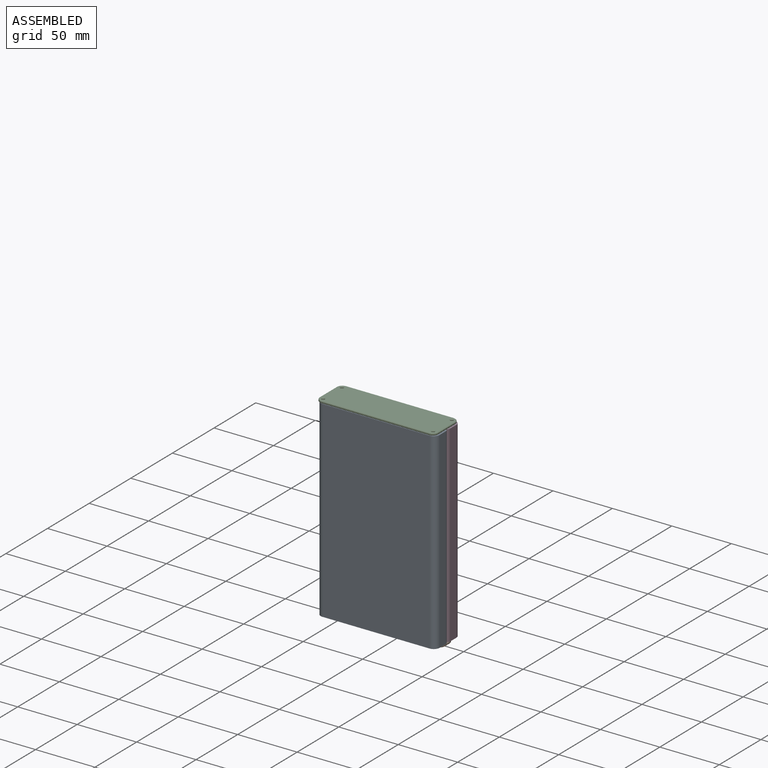
[diagram: assembled view]
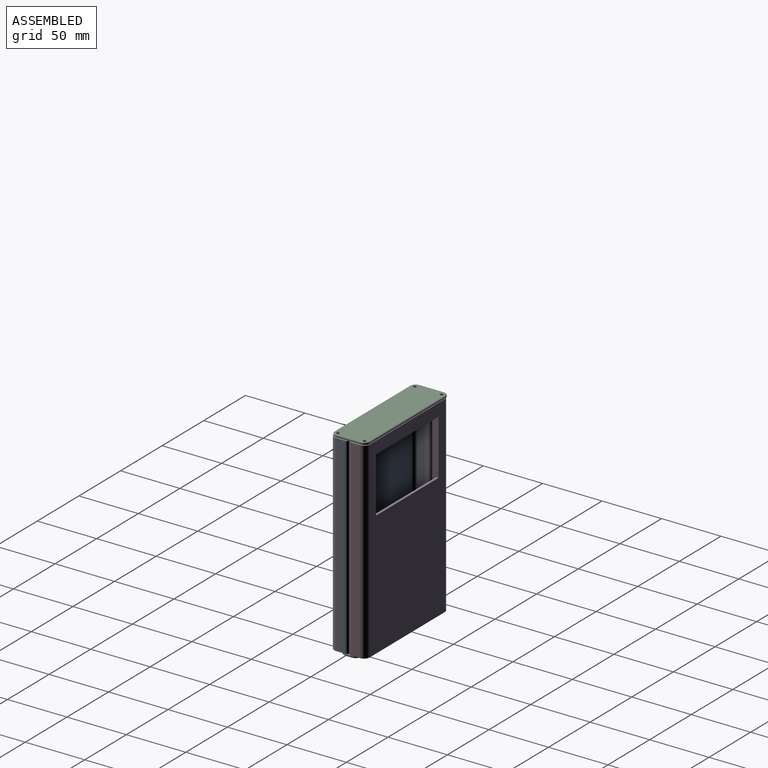
[diagram: assembled view, second angle]
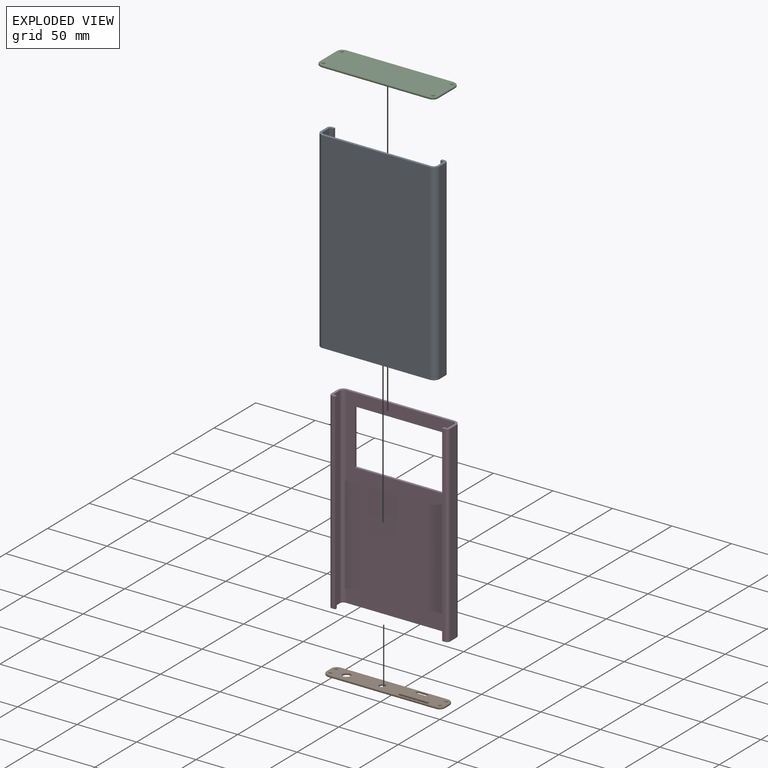
[diagram: exploded view]
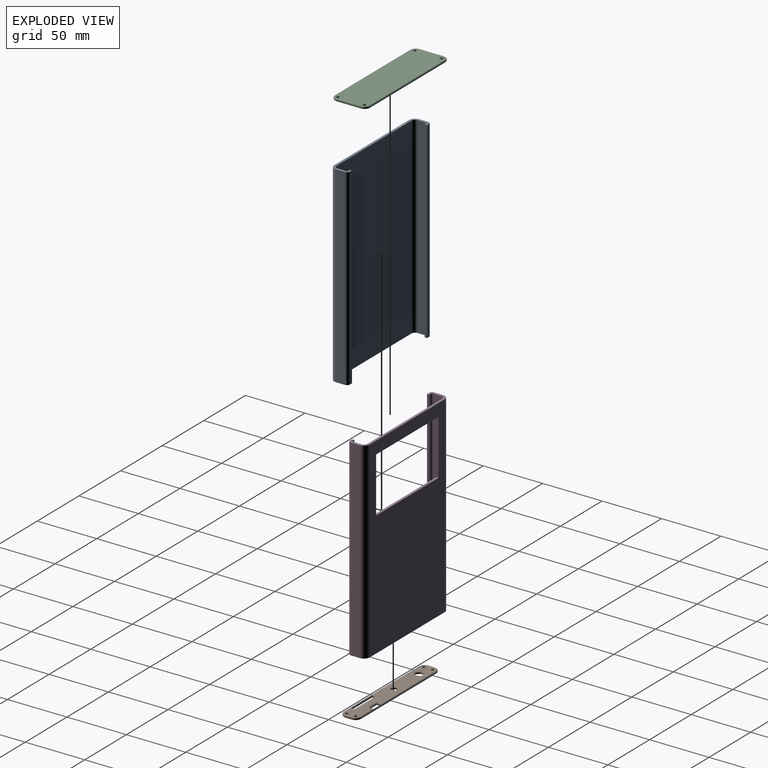
[diagram: exploded view, second angle]
ASSEMBLY  parts=4 mates=4
PART A: 22 faces, bbox 100x15x161.8 mm
  f0: plane 161.8x2mm, normal (-1,0,0), area 323.6mm2, adj f1,f19,f20,f21
  f1: plane 161.8x2.5mm, normal (0,-1,0), area 404.5mm2, adj f0,f2,f20,f21
  f2: cylinder r=0.5mm len=161.8mm, axis (0,0,-1), area 127.1mm2, adj f1,f3,f20,f21
  f3: plane 161.8x7.5mm, normal (-1,0,0), area 1213.5mm2, adj f2,f4,f20,f21
  f4: cylinder r=3mm len=161.8mm, axis (0,0,-1), area 762.5mm2, adj f3,f5,f20,f21
  f5: plane 161.8x90mm, normal (0,1,0), area 14562mm2, adj f4,f6,f20,f21
  f6: cylinder r=3mm len=161.8mm, axis (0,0,-1), area 762.5mm2, adj f5,f7,f20,f21
  f7: plane 161.8x7.5mm, normal (1,0,0), area 1213.5mm2, adj f6,f8,f20,f21
  f8: cylinder r=0.5mm len=161.8mm, axis (0,0,-1), area 127.1mm2, adj f7,f9,f20,f21
  f9: plane 161.8x2.5mm, normal (0,-1,0), area 404.5mm2, adj f8,f10,f20,f21
  f10: plane 161.8x2mm, normal (1,0,0), area 323.6mm2, adj f9,f11,f20,f21
  f11: plane 161.8x2.5mm, normal (0,1,0), area 404.5mm2, adj f10,f12,f20,f21
  f12: cylinder r=2.5mm len=161.8mm, axis (0,0,-1), area 635.4mm2, adj f11,f13,f20,f21
  f13: plane 161.8x7.5mm, normal (-1,0,0), area 1213.5mm2, adj f12,f14,f20,f21
  f14: cylinder r=5mm len=161.8mm, axis (0,0,-1), area 1270.8mm2, adj f13,f15,f20,f21
  f15: plane 161.8x90mm, normal (0,-1,0), area 14562mm2, adj f14,f16,f20,f21
  f16: cylinder r=5mm len=161.8mm, axis (0,0,-1), area 1270.8mm2, adj f15,f17,f20,f21
  f17: plane 161.8x7.5mm, normal (1,0,0), area 1213.5mm2, adj f16,f18,f20,f21
  f18: cylinder r=2.5mm len=161.8mm, axis (0,0,-1), area 635.4mm2, adj f17,f19,f20,f21
  f19: plane 161.8x2.5mm, normal (0,1,0), area 404.5mm2, adj f0,f18,f20,f21
  f20: plane 100x15mm, normal (0,0,1), area 254.6mm2, adj f0,f1,f2,f3,f4,f5,f6,f7
  f21: plane 100x15mm, normal (0,0,-1), area 254.6mm2, adj f0,f1,f2,f3,f4,f5,f6,f7
PART B: 68 faces, bbox 100x2x15 mm
  f0: plane 5x1mm, normal (1,0,0), area 5mm2, adj f20,f23,f25,f46
  f1: plane 90x1mm, normal (0,0,1), area 90mm2, adj f20,f21,f32,f54
  f2: plane 5x1mm, normal (-1,0,0), area 5mm2, adj f21,f22,f35,f57
  f3: plane 25x1mm, normal (0,0,-1), area 25mm2, adj f4,f9,f43,f65
  f4: plane 2.5x1mm, normal (-1,0,0), area 2.5mm2, adj f3,f5,f41,f63
  f5: plane 25x1mm, normal (0,0,1), area 25mm2, adj f4,f9,f42,f64
  f6: plane 9x1mm, normal (0,0,-1), area 9mm2, adj f7,f10,f28,f51
  f7: plane 3.42x1mm, normal (-1,0,0), area 3.4mm2, adj f6,f8,f29,f50
  f8: plane 9x1mm, normal (0,0,1), area 9mm2, adj f7,f10,f24,f47
  f9: plane 2.5x1mm, normal (1,0,0), area 2.5mm2, adj f3,f5,f44,f66
  f10: plane 3.42x1mm, normal (1,0,0), area 3.4mm2, adj f6,f8,f27,f52
  f11: cylinder r=3.17mm len=6.35mm, axis (0,1,0), area 19.9mm2, adj f45,f67
  f12: cylinder r=2.5mm len=5mm, axis (0,1,0), area 15.7mm2, adj f40,f62
  f13: cylinder r=1.25mm len=2.5mm, axis (0,1,0), area 7.9mm2, adj f39,f61
  f14: cylinder r=1.25mm len=2.5mm, axis (0,1,0), area 7.9mm2, adj f38,f60
  f15: cylinder r=1.25mm len=2.5mm, axis (0,1,0), area 7.9mm2, adj f37,f59
  f16: cylinder r=1.25mm len=2.5mm, axis (0,1,0), area 7.9mm2, adj f36,f58
  f17: plane 90x1mm, normal (0,0,-1), area 90mm2, adj f22,f23,f31,f53
  f18: plane 99x14mm, normal (0,-1,0), area 1126.3mm2, adj f46,f47,f48,f49,f50,f52,f53,f54
  f19: plane 99x14mm, normal (0,1,0), area 1126.3mm2, adj f24,f25,f26,f27,f29,f30,f31,f32
  f20: cylinder r=5mm len=5mm, axis (0,1,0), area 7.9mm2, adj f0,f1,f30,f49
  f21: cylinder r=5mm len=5mm, axis (0,-1,0), area 7.9mm2, adj f1,f2,f34,f56
  f22: cylinder r=5mm len=5mm, axis (0,1,0), area 7.9mm2, adj f2,f17,f33,f55
  f23: cylinder r=5mm len=5mm, axis (0,-1,0), area 7.9mm2, adj f0,f17,f26,f48
  f24: plane 10x0.5mm, normal (0,0.71,0.71), area 6.7mm2, adj f8,f19,f27,f29
  f25: plane 5x0.5mm, normal (0.71,0.71,0), area 3.5mm2, adj f0,f19,f26,f30
  f26: cone r=4.5mm half-angle=45deg, axis (0,-1,0), area 5.3mm2, adj f19,f23,f25,f31
  f27: plane 4.32x0.5mm, normal (0.71,0.71,0), area 2.8mm2, adj f10,f19,f24,f28,f32
  f28: plane 9.79x0.4mm, normal (0,0.71,-0.71), area 5.2mm2, adj f6,f27,f29,f32
  f29: plane 4.32x0.5mm, normal (-0.71,0.71,0), area 2.8mm2, adj f7,f19,f24,f28,f32
  f30: cone r=4.5mm half-angle=45deg, axis (0,-1,0), area 5.3mm2, adj f19,f20,f25,f32
  f31: plane 90x0.5mm, normal (0,0.71,-0.71), area 63.6mm2, adj f17,f19,f26,f33
  f32: plane 90x0.5mm, normal (0,0.71,0.71), area 62.2mm2, adj f1,f19,f27,f28,f29,f30,f34
  f33: cone r=4.5mm half-angle=45deg, axis (0,-1,0), area 5.3mm2, adj f19,f22,f31,f35
  f34: cone r=4.5mm half-angle=45deg, axis (0,-1,0), area 5.3mm2, adj f19,f21,f32,f35
  f35: plane 5x0.5mm, normal (-0.71,0.71,0), area 3.5mm2, adj f2,f19,f33,f34
  f36: cone r=1.75mm half-angle=45deg, axis (0,1,0), area 6.7mm2, adj f16,f19
  f37: cone r=1.75mm half-angle=45deg, axis (0,1,0), area 6.7mm2, adj f15,f19
  f38: cone r=1.75mm half-angle=45deg, axis (0,1,0), area 6.7mm2, adj f14,f19
  f39: cone r=1.75mm half-angle=45deg, axis (0,1,0), area 6.7mm2, adj f13,f19
  f40: cone r=3mm half-angle=45deg, axis (0,1,0), area 12.2mm2, adj f12,f19
  f41: plane 3.5x0.5mm, normal (-0.71,0.71,0), area 2.1mm2, adj f4,f19,f42,f43
  f42: plane 26x0.5mm, normal (0,0.71,0.71), area 18mm2, adj f5,f19,f41,f44
  f43: plane 26x0.5mm, normal (0,0.71,-0.71), area 18mm2, adj f3,f19,f41,f44
  f44: plane 3.5x0.5mm, normal (0.71,0.71,0), area 2.1mm2, adj f9,f19,f42,f43
  f45: cone r=3.67mm half-angle=45deg, axis (0,1,0), area 15.2mm2, adj f11,f19
  f46: plane 5x0.5mm, normal (0.71,-0.71,0), area 3.5mm2, adj f0,f18,f48,f49
  f47: plane 10x0.5mm, normal (0,-0.71,0.71), area 6.7mm2, adj f8,f18,f50,f52
  f48: cone r=4.5mm half-angle=45deg, axis (0,1,0), area 5.3mm2, adj f18,f23,f46,f53
  f49: cone r=4.5mm half-angle=45deg, axis (0,1,0), area 5.3mm2, adj f18,f20,f46,f54
  f50: plane 4.32x0.5mm, normal (-0.71,-0.71,0), area 2.8mm2, adj f7,f18,f47,f51,f54
  f51: plane 9.79x0.4mm, normal (0,-0.71,-0.71), area 5.2mm2, adj f6,f50,f52,f54
  f52: plane 4.32x0.5mm, normal (0.71,-0.71,0), area 2.8mm2, adj f10,f18,f47,f51,f54
  f53: plane 90x0.5mm, normal (0,-0.71,-0.71), area 63.6mm2, adj f17,f18,f48,f55
  f54: plane 90x0.5mm, normal (0,-0.71,0.71), area 62.2mm2, adj f1,f18,f49,f50,f51,f52,f56
  f55: cone r=4.5mm half-angle=45deg, axis (0,1,0), area 5.3mm2, adj f18,f22,f53,f57
  f56: cone r=4.5mm half-angle=45deg, axis (0,1,0), area 5.3mm2, adj f18,f21,f54,f57
  f57: plane 5x0.5mm, normal (-0.71,-0.71,0), area 3.5mm2, adj f2,f18,f55,f56
  f58: cone r=1.25mm half-angle=45deg, axis (0,-1,0), area 6.7mm2, adj f16,f18
  f59: cone r=1.25mm half-angle=45deg, axis (0,-1,0), area 6.7mm2, adj f15,f18
  f60: cone r=1.25mm half-angle=45deg, axis (0,-1,0), area 6.7mm2, adj f14,f18
  f61: cone r=1.25mm half-angle=45deg, axis (0,-1,0), area 6.7mm2, adj f13,f18
  f62: cone r=2.5mm half-angle=45deg, axis (0,-1,0), area 12.2mm2, adj f12,f18
  f63: plane 3.5x0.5mm, normal (-0.71,-0.71,0), area 2.1mm2, adj f4,f18,f64,f65
  f64: plane 26x0.5mm, normal (0,-0.71,0.71), area 18mm2, adj f5,f18,f63,f66
  f65: plane 26x0.5mm, normal (0,-0.71,-0.71), area 18mm2, adj f3,f18,f63,f66
  f66: plane 3.5x0.5mm, normal (0.71,-0.71,0), area 2.1mm2, adj f9,f18,f64,f65
  f67: cone r=3.17mm half-angle=45deg, axis (0,-1,0), area 15.2mm2, adj f11,f18
PART C: 38 faces, bbox 100x30x2 mm
  f0: plane 20x1mm, normal (1,0,0), area 20mm2, adj f10,f13,f14,f26
  f1: plane 90x1mm, normal (0,1,0), area 90mm2, adj f10,f11,f18,f30
  f2: plane 20x1mm, normal (-1,0,0), area 20mm2, adj f11,f12,f21,f33
  f3: cylinder r=1.25mm len=2.5mm, axis (0,0,-1), area 7.9mm2, adj f25,f37
  f4: cylinder r=1.25mm len=2.5mm, axis (0,0,-1), area 7.9mm2, adj f24,f36
  f5: cylinder r=1.25mm len=2.5mm, axis (0,0,-1), area 7.9mm2, adj f23,f35
  f6: cylinder r=1.25mm len=2.5mm, axis (0,0,-1), area 7.9mm2, adj f22,f34
  f7: plane 90x1mm, normal (0,-1,0), area 90mm2, adj f12,f13,f17,f29
  f8: plane 99x29mm, normal (0,0,1), area 2815.1mm2, adj f26,f27,f28,f29,f30,f31,f32,f33
  f9: plane 99x29mm, normal (0,0,-1), area 2815.1mm2, adj f14,f15,f16,f17,f18,f19,f20,f21
  f10: cylinder r=5mm len=5mm, axis (0,0,-1), area 7.9mm2, adj f0,f1,f16,f28
  f11: cylinder r=5mm len=5mm, axis (0,0,1), area 7.9mm2, adj f1,f2,f20,f32
  f12: cylinder r=5mm len=5mm, axis (0,0,-1), area 7.9mm2, adj f2,f7,f19,f31
  f13: cylinder r=5mm len=5mm, axis (0,0,1), area 7.9mm2, adj f0,f7,f15,f27
  f14: plane 20x0.5mm, normal (0.71,0,-0.71), area 14.1mm2, adj f0,f9,f15,f16
  f15: cone r=4.5mm half-angle=45deg, axis (0,0,1), area 5.3mm2, adj f9,f13,f14,f17
  f16: cone r=4.5mm half-angle=45deg, axis (0,0,1), area 5.3mm2, adj f9,f10,f14,f18
  f17: plane 90x0.5mm, normal (0,-0.71,-0.71), area 63.6mm2, adj f7,f9,f15,f19
  f18: plane 90x0.5mm, normal (0,0.71,-0.71), area 63.6mm2, adj f1,f9,f16,f20
  f19: cone r=4.5mm half-angle=45deg, axis (0,0,1), area 5.3mm2, adj f9,f12,f17,f21
  f20: cone r=4.5mm half-angle=45deg, axis (0,0,1), area 5.3mm2, adj f9,f11,f18,f21
  f21: plane 20x0.5mm, normal (-0.71,0,-0.71), area 14.1mm2, adj f2,f9,f19,f20
  f22: cone r=1.75mm half-angle=45deg, axis (0,0,-1), area 6.7mm2, adj f6,f9
  f23: cone r=1.75mm half-angle=45deg, axis (0,0,-1), area 6.7mm2, adj f5,f9
  f24: cone r=1.75mm half-angle=45deg, axis (0,0,-1), area 6.7mm2, adj f4,f9
  f25: cone r=1.75mm half-angle=45deg, axis (0,0,-1), area 6.7mm2, adj f3,f9
  f26: plane 20x0.5mm, normal (0.71,0,0.71), area 14.1mm2, adj f0,f8,f27,f28
  f27: cone r=4.5mm half-angle=45deg, axis (0,0,-1), area 5.3mm2, adj f8,f13,f26,f29
  f28: cone r=4.5mm half-angle=45deg, axis (0,0,-1), area 5.3mm2, adj f8,f10,f26,f30
  f29: plane 90x0.5mm, normal (0,-0.71,0.71), area 63.6mm2, adj f7,f8,f27,f31
  f30: plane 90x0.5mm, normal (0,0.71,0.71), area 63.6mm2, adj f1,f8,f28,f32
  f31: cone r=4.5mm half-angle=45deg, axis (0,0,-1), area 5.3mm2, adj f8,f12,f29,f33
  f32: cone r=4.5mm half-angle=45deg, axis (0,0,-1), area 5.3mm2, adj f8,f11,f30,f33
  f33: plane 20x0.5mm, normal (-0.71,0,0.71), area 14.1mm2, adj f2,f8,f31,f32
  f34: cone r=1.25mm half-angle=45deg, axis (0,0,1), area 6.7mm2, adj f6,f8
  f35: cone r=1.25mm half-angle=45deg, axis (0,0,1), area 6.7mm2, adj f5,f8
  f36: cone r=1.25mm half-angle=45deg, axis (0,0,1), area 6.7mm2, adj f4,f8
  f37: cone r=1.25mm half-angle=45deg, axis (0,0,1), area 6.7mm2, adj f3,f8
PART D: 26 faces, bbox 100x15x161.8 mm
  f0: plane 161.8x2mm, normal (-1,0,0), area 323.6mm2, adj f1,f19,f20,f21
  f1: plane 161.8x2.5mm, normal (0,-1,0), area 404.5mm2, adj f0,f2,f20,f21
  f2: cylinder r=0.5mm len=161.8mm, axis (0,0,-1), area 127.1mm2, adj f1,f3,f20,f21
  f3: plane 161.8x7.5mm, normal (-1,0,0), area 1213.5mm2, adj f2,f4,f20,f21
  f4: cylinder r=3mm len=161.8mm, axis (0,0,-1), area 762.5mm2, adj f3,f5,f20,f21
  f5: plane 161.8x90mm, normal (0,1,0), area 11082mm2, adj f4,f6,f20,f21,f22,f23,f24,f25
  f6: cylinder r=3mm len=161.8mm, axis (0,0,-1), area 762.5mm2, adj f5,f7,f20,f21
  f7: plane 161.8x7.5mm, normal (1,0,0), area 1213.5mm2, adj f6,f8,f20,f21
  f8: cylinder r=0.5mm len=161.8mm, axis (0,0,-1), area 127.1mm2, adj f7,f9,f20,f21
  f9: plane 161.8x2.5mm, normal (0,-1,0), area 404.5mm2, adj f8,f10,f20,f21
  f10: plane 161.8x2mm, normal (1,0,0), area 323.6mm2, adj f9,f11,f20,f21
  f11: plane 161.8x2.5mm, normal (0,1,0), area 404.5mm2, adj f10,f12,f20,f21
  f12: cylinder r=2.5mm len=161.8mm, axis (0,0,-1), area 635.4mm2, adj f11,f13,f20,f21
  f13: plane 161.8x7.5mm, normal (-1,0,0), area 1213.5mm2, adj f12,f14,f20,f21
  f14: cylinder r=5mm len=161.8mm, axis (0,0,-1), area 1270.8mm2, adj f13,f15,f20,f21
  f15: plane 161.8x90mm, normal (0,-1,0), area 11082mm2, adj f14,f16,f20,f21,f22,f23,f24,f25
  f16: cylinder r=5mm len=161.8mm, axis (0,0,-1), area 1270.8mm2, adj f15,f17,f20,f21
  f17: plane 161.8x7.5mm, normal (1,0,0), area 1213.5mm2, adj f16,f18,f20,f21
  f18: cylinder r=2.5mm len=161.8mm, axis (0,0,-1), area 635.4mm2, adj f17,f19,f20,f21
  f19: plane 161.8x2.5mm, normal (0,1,0), area 404.5mm2, adj f0,f18,f20,f21
  f20: plane 100x15mm, normal (0,0,1), area 254.6mm2, adj f0,f1,f2,f3,f4,f5,f6,f7
  f21: plane 100x15mm, normal (0,0,-1), area 254.6mm2, adj f0,f1,f2,f3,f4,f5,f6,f7
  f22: plane 46.4x2mm, normal (-1,0,0), area 92.8mm2, adj f5,f15,f23,f25
  f23: plane 75x2mm, normal (0,0,-1), area 150mm2, adj f5,f15,f22,f24
  f24: plane 46.4x2mm, normal (1,0,0), area 92.8mm2, adj f5,f15,f23,f25
  f25: plane 75x2mm, normal (0,0,1), area 150mm2, adj f5,f15,f22,f24
PLACE A t=(1.97,62.18,118.94)mm
PLACE B rot(axis=(-1,0,0),90deg) t=(46.51,64.35,116.94)mm
PLACE C t=(46.14,64.15,280.82)mm
PLACE D rot(axis=(0,0,1),180deg) t=(91.97,66.18,118.94)mm
MATE parallel C.f9 <-> D.f20  axis (0,0,-1) through (46.14,64.15,280.82)mm
MATE planar B.f18 <-> A.f21  axis (0,0,1) through (1.51,57.35,118.94)mm
MATE planar B.f18 <-> D.f21  axis (0,0,1) through (45,64.57,118.94)mm
MATE parallel D.f11 <-> A.f19  axis (0,-1,0) through (93.22,64.18,199.84)mm
